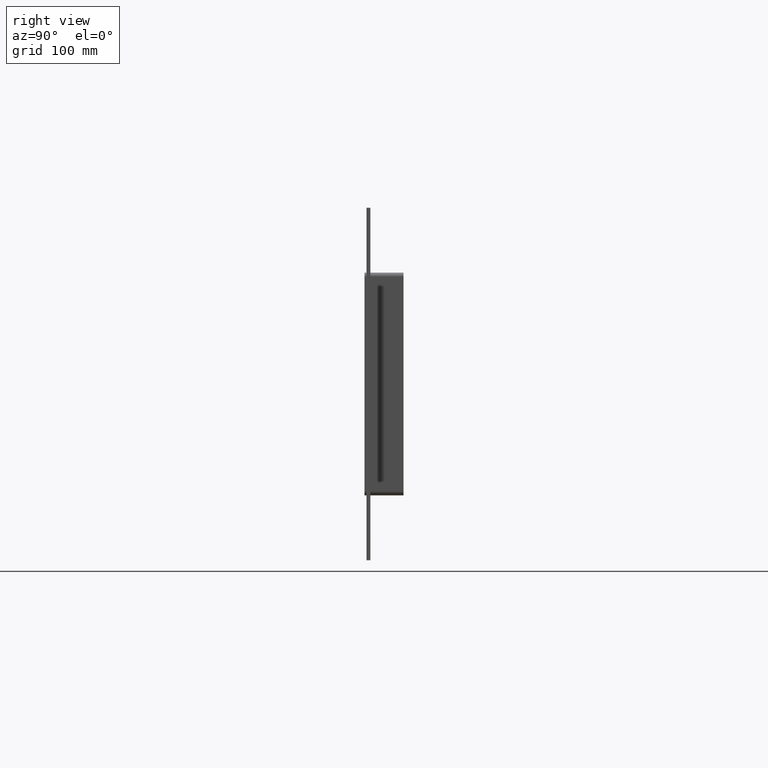
[diagram: clean part render]
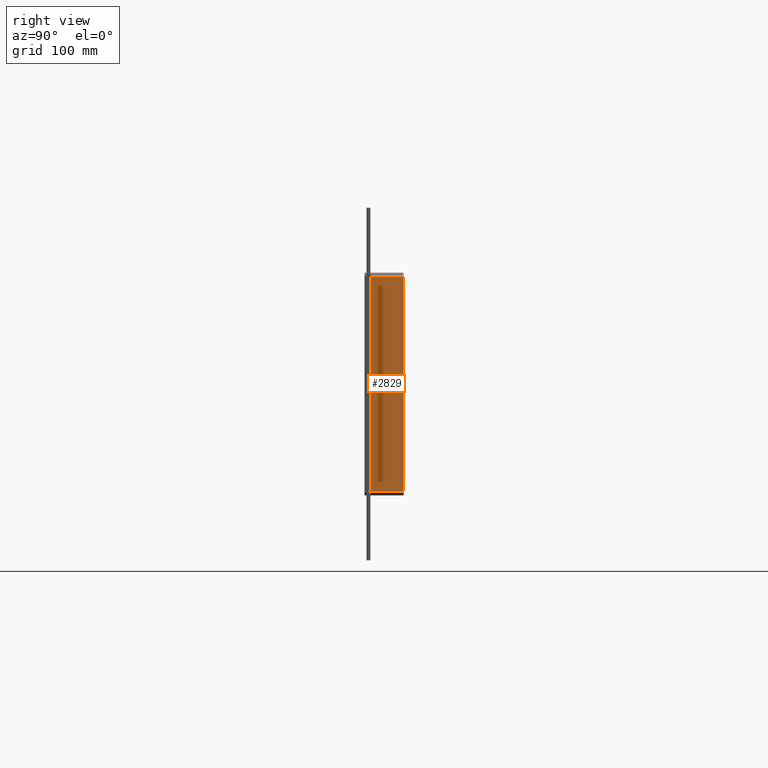
[diagram: same view with one face highlighted and labeled with its STEP entity id]
A machine part, right view. The second image highlights one B-rep face of the part: STEP entity #2829.
In plain terms, the highlighted planar face has unit normal (1, 0, 0).
Its self-contained STEP definition (entity closure, byte-faithful):
#1740=CARTESIAN_POINT('',(392.5,57.0,-165.50000000000006));
#1741=VERTEX_POINT('',#1740);
#1791=CARTESIAN_POINT('',(392.5,57.0,165.49999999999997));
#1792=VERTEX_POINT('',#1791);
#1800=CARTESIAN_POINT('',(392.5,57.0,165.5));
#1801=DIRECTION('',(0.0,0.0,-1.0));
#1802=VECTOR('',#1801,331.0);
#1803=LINE('',#1800,#1802);
#1804=EDGE_CURVE('',#1792,#1741,#1803,.T.);
#2456=CARTESIAN_POINT('',(392.5,6.000000000000001,-165.50000000000006));
#2457=VERTEX_POINT('',#2456);
#2465=CARTESIAN_POINT('',(392.5,6.000000000000001,165.49999999999997));
#2466=VERTEX_POINT('',#2465);
#2467=CARTESIAN_POINT('',(392.5,6.000000000000001,165.49999999999997));
#2468=DIRECTION('',(0.0,0.0,-1.0));
#2469=VECTOR('',#2468,331.0);
#2470=LINE('',#2467,#2469);
#2471=EDGE_CURVE('',#2466,#2457,#2470,.T.);
#2780=CARTESIAN_POINT('',(392.5,6.000000000000001,165.49999999999997));
#2781=DIRECTION('',(0.0,1.0,0.0));
#2782=VECTOR('',#2781,51.0);
#2783=LINE('',#2780,#2782);
#2784=EDGE_CURVE('',#2466,#1792,#2783,.T.);
#2813=CARTESIAN_POINT('',(392.5,0.0,171.5));
#2814=DIRECTION('',(1.0,0.0,0.0));
#2815=DIRECTION('',(0.0,0.0,-1.0));
#2816=AXIS2_PLACEMENT_3D('',#2813,#2814,#2815);
#2817=PLANE('',#2816);
#2818=ORIENTED_EDGE('',*,*,#2471,.T.);
#2819=CARTESIAN_POINT('',(392.5,57.0,-165.50000000000006));
#2820=DIRECTION('',(0.0,-1.0,0.0));
#2821=VECTOR('',#2820,51.0);
#2822=LINE('',#2819,#2821);
#2823=EDGE_CURVE('',#1741,#2457,#2822,.T.);
#2824=ORIENTED_EDGE('',*,*,#2823,.F.);
#2825=ORIENTED_EDGE('',*,*,#1804,.F.);
#2826=ORIENTED_EDGE('',*,*,#2784,.F.);
#2827=EDGE_LOOP('',(#2818,#2824,#2825,#2826));
#2828=FACE_OUTER_BOUND('',#2827,.T.);
#2829=ADVANCED_FACE('',(#2828),#2817,.T.);